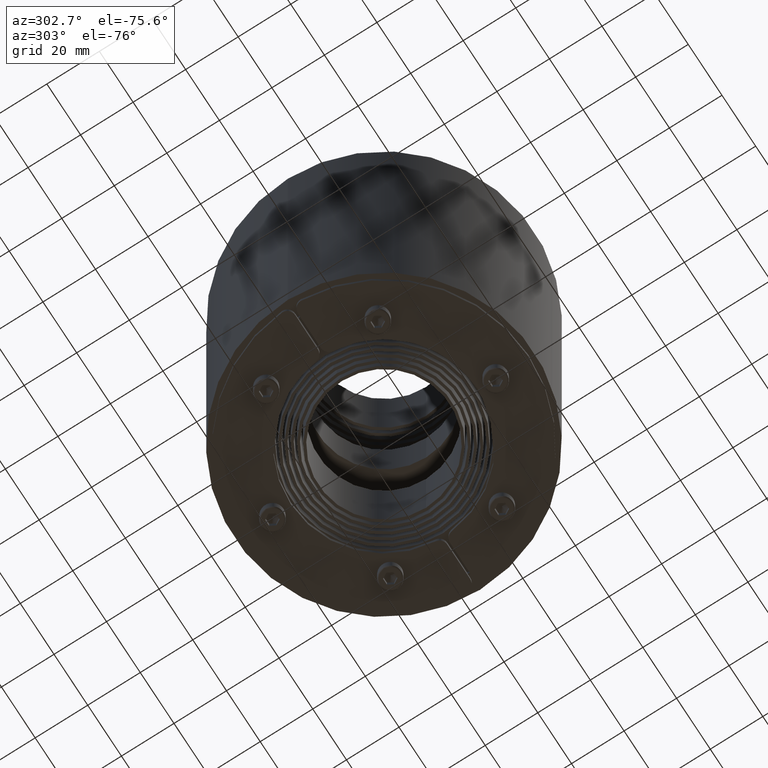
[diagram: clean part render]
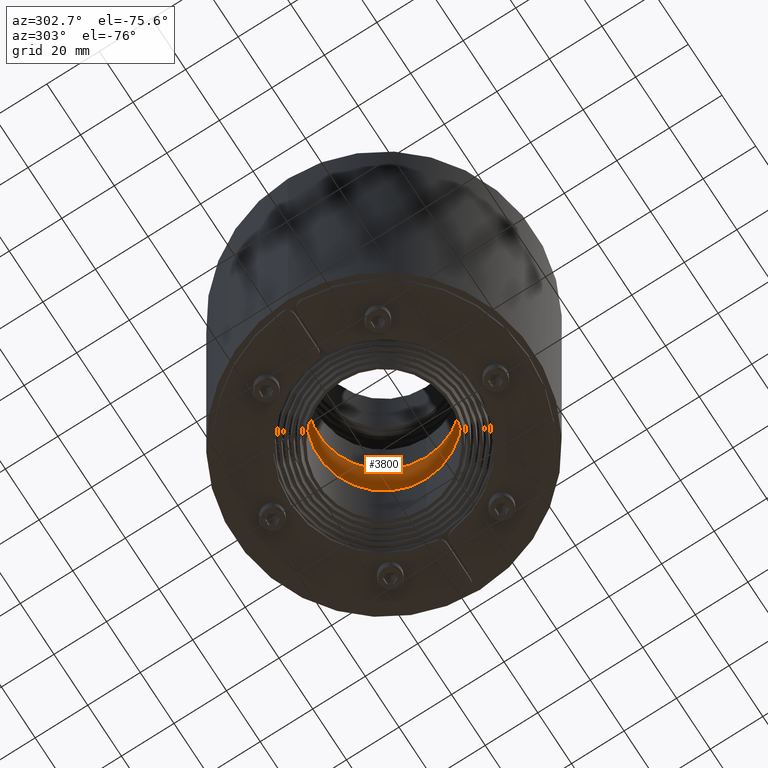
[diagram: same view with one face highlighted and labeled with its STEP entity id]
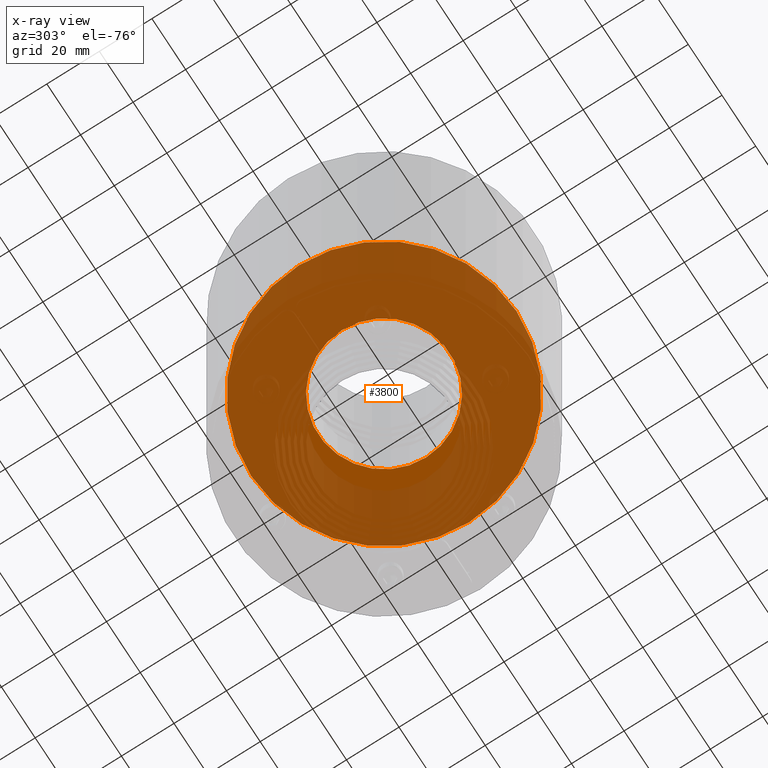
[diagram: x-ray of the same camera — body ghosted, the highlighted face saturated]
A machine part, auxiliary view. The second image highlights one B-rep face of the part: STEP entity #3800.
The next image is the same camera in x-ray: the body ghosted, the highlighted face saturated — about 94% of this face is hidden behind the body in this view.
In plain terms, the highlighted planar face has unit normal (0, 0, -1).
Its self-contained STEP definition (entity closure, byte-faithful):
#3662=CARTESIAN_POINT('',(25.0,0.0,12.500000000000000));
#3663=VERTEX_POINT('',#3662);
#3679=CARTESIAN_POINT('',(-25.0,3.061516E-015,12.500000000000000));
#3680=VERTEX_POINT('',#3679);
#3687=CARTESIAN_POINT('',(0.0,0.0,12.500000000000000));
#3688=DIRECTION('',(0.0,0.0,1.0));
#3689=DIRECTION('',(1.0,0.0,0.0));
#3690=AXIS2_PLACEMENT_3D('',#3687,#3688,#3689);
#3691=CIRCLE('',#3690,25.0);
#3692=EDGE_CURVE('',#3680,#3663,#3691,.T.);
#3704=CARTESIAN_POINT('',(50.500000000000000,0.0,12.500000000000000));
#3705=VERTEX_POINT('',#3704);
#3721=CARTESIAN_POINT('',(-50.500000000000000,6.184262E-015,12.500000000000000));
#3722=VERTEX_POINT('',#3721);
#3729=CARTESIAN_POINT('',(0.0,0.0,12.500000000000000));
#3730=DIRECTION('',(0.0,0.0,-1.0));
#3731=DIRECTION('',(1.0,0.0,0.0));
#3732=AXIS2_PLACEMENT_3D('',#3729,#3730,#3731);
#3733=CIRCLE('',#3732,50.500000000000000);
#3734=EDGE_CURVE('',#3722,#3705,#3733,.T.);
#3745=CARTESIAN_POINT('',(0.0,0.0,12.500000000000000));
#3746=DIRECTION('',(0.0,0.0,-1.0));
#3747=DIRECTION('',(1.0,0.0,0.0));
#3748=AXIS2_PLACEMENT_3D('',#3745,#3746,#3747);
#3749=CIRCLE('',#3748,50.500000000000000);
#3750=EDGE_CURVE('',#3705,#3722,#3749,.T.);
#3769=CARTESIAN_POINT('',(0.0,0.0,12.500000000000000));
#3770=DIRECTION('',(0.0,0.0,1.0));
#3771=DIRECTION('',(1.0,0.0,0.0));
#3772=AXIS2_PLACEMENT_3D('',#3769,#3770,#3771);
#3773=CIRCLE('',#3772,25.0);
#3774=EDGE_CURVE('',#3663,#3680,#3773,.T.);
#3787=CARTESIAN_POINT('',(0.0,0.0,12.500000000000000));
#3788=DIRECTION('',(0.0,0.0,1.0));
#3789=DIRECTION('',(1.0,0.0,0.0));
#3790=AXIS2_PLACEMENT_3D('',#3787,#3788,#3789);
#3791=PLANE('',#3790);
#3792=ORIENTED_EDGE('',*,*,#3750,.F.);
#3793=ORIENTED_EDGE('',*,*,#3734,.F.);
#3794=EDGE_LOOP('',(#3792,#3793));
#3795=FACE_OUTER_BOUND('',#3794,.T.);
#3796=ORIENTED_EDGE('',*,*,#3774,.F.);
#3797=ORIENTED_EDGE('',*,*,#3692,.F.);
#3798=EDGE_LOOP('',(#3796,#3797));
#3799=FACE_BOUND('',#3798,.T.);
#3800=ADVANCED_FACE('',(#3795,#3799),#3791,.T.);